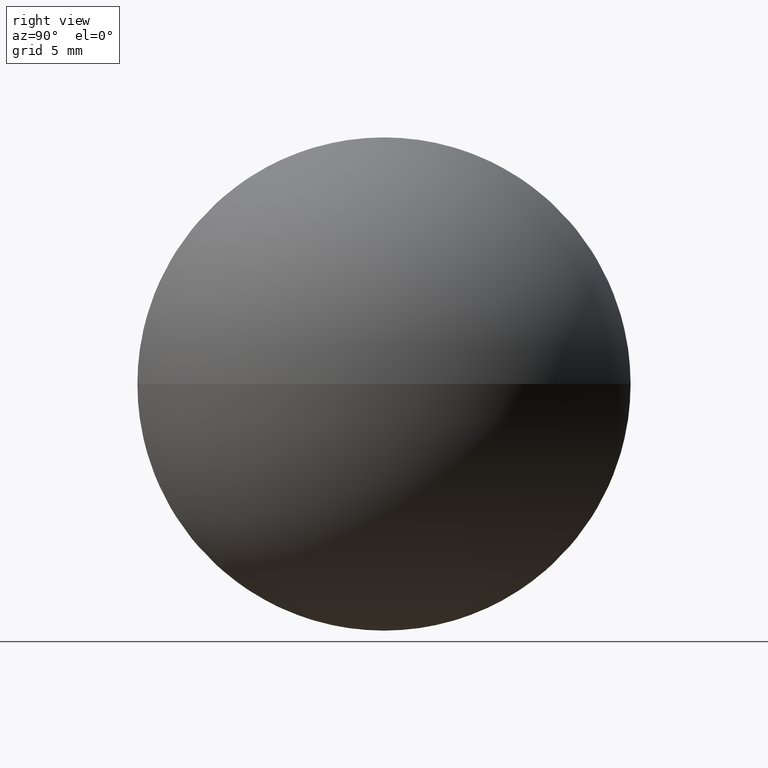
[diagram: clean part render]
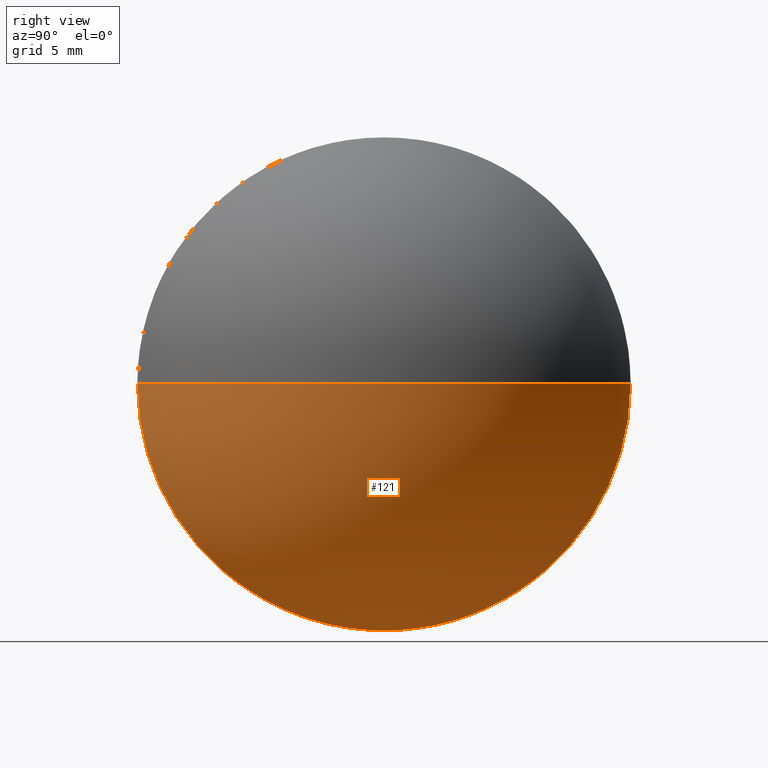
[diagram: same view with one face highlighted and labeled with its STEP entity id]
A machine part, right view. The second image highlights one B-rep face of the part: STEP entity #121.
In plain terms, the highlighted spherical surface has radius 13.1089 mm.
Its self-contained STEP definition (entity closure, byte-faithful):
#16 = SPHERICAL_SURFACE ( 'NONE', #117, 13.10893013100434100 ) ;
#17 = AXIS2_PLACEMENT_3D ( 'NONE', #145, #19, #160 ) ;
#19 = DIRECTION ( 'NONE',  ( -1.000000000000000000, -0.0000000000000000000, -0.0000000000000000000 ) ) ;
#25 = DIRECTION ( 'NONE',  ( 0.0000000000000000000, -1.000000000000000000, -1.224646799147353700E-016 ) ) ;
#27 = VERTEX_POINT ( 'NONE', #176 ) ;
#31 = ORIENTED_EDGE ( 'NONE', *, *, #87, .F. ) ;
#35 = DIRECTION ( 'NONE',  ( -1.000000000000000000, 0.0000000000000000000, 0.0000000000000000000 ) ) ;
#47 = CARTESIAN_POINT ( 'NONE',  ( 431.0878866193999700, 66.57798510397459800, 0.0000000000000000000 ) ) ;
#50 = DIRECTION ( 'NONE',  ( 0.0000000000000000000, 0.0000000000000000000, -1.000000000000000000 ) ) ;
#60 = CIRCLE ( 'NONE', #79, 13.10893013100433700 ) ;
#79 = AXIS2_PLACEMENT_3D ( 'NONE', #124, #50, #35 ) ;
#80 = DIRECTION ( 'NONE',  ( 0.0000000000000000000, -1.000000000000000000, 0.0000000000000000000 ) ) ;
#81 = CARTESIAN_POINT ( 'NONE',  ( 421.9278866193999400, 66.57798510397458400, -12.49999999999999600 ) ) ;
#84 = DIRECTION ( 'NONE',  ( 0.0000000000000000000, -1.224646799147353200E-016, 1.000000000000000000 ) ) ;
#85 = EDGE_LOOP ( 'NONE', ( #148, #110, #89, #31 ) ) ;
#86 = CARTESIAN_POINT ( 'NONE',  ( 417.9789564883956200, 66.57798510397459800, 0.0000000000000000000 ) ) ;
#87 = EDGE_CURVE ( 'NONE', #27, #125, #100, .T. ) ;
#89 = ORIENTED_EDGE ( 'NONE', *, *, #136, .F. ) ;
#100 = CIRCLE ( 'NONE', #17, 12.49999999999999600 ) ;
#109 = EDGE_CURVE ( 'NONE', #119, #137, #60, .T. ) ;
#110 = ORIENTED_EDGE ( 'NONE', *, *, #109, .T. ) ;
#114 = DIRECTION ( 'NONE',  ( 0.0000000000000000000, 0.0000000000000000000, 1.000000000000000000 ) ) ;
#117 = AXIS2_PLACEMENT_3D ( 'NONE', #135, #166, #80 ) ;
#119 = VERTEX_POINT ( 'NONE', #47 ) ;
#121 = ADVANCED_FACE ( 'NONE', ( #161 ), #16, .T. ) ;
#123 = AXIS2_PLACEMENT_3D ( 'NONE', #86, #84, #25 ) ;
#124 = CARTESIAN_POINT ( 'NONE',  ( 417.9789564883956200, 66.57798510397459800, 0.0000000000000000000 ) ) ;
#125 = VERTEX_POINT ( 'NONE', #81 ) ;
#135 = CARTESIAN_POINT ( 'NONE',  ( 417.9789564883956200, 66.57798510397459800, 0.0000000000000000000 ) ) ;
#136 = EDGE_CURVE ( 'NONE', #125, #137, #168, .T. ) ;
#137 = VERTEX_POINT ( 'NONE', #185 ) ;
#142 = AXIS2_PLACEMENT_3D ( 'NONE', #182, #183, #114 ) ;
#145 = CARTESIAN_POINT ( 'NONE',  ( 421.9278866193999400, 66.57798510397458400, 0.0000000000000000000 ) ) ;
#148 = ORIENTED_EDGE ( 'NONE', *, *, #154, .F. ) ;
#154 = EDGE_CURVE ( 'NONE', #119, #27, #175, .T. ) ;
#160 = DIRECTION ( 'NONE',  ( 0.0000000000000000000, 0.0000000000000000000, 1.000000000000000000 ) ) ;
#161 = FACE_OUTER_BOUND ( 'NONE', #85, .T. ) ;
#166 = DIRECTION ( 'NONE',  ( 0.0000000000000000000, 0.0000000000000000000, 1.000000000000000000 ) ) ;
#168 = CIRCLE ( 'NONE', #142, 12.49999999999999600 ) ;
#175 = CIRCLE ( 'NONE', #123, 13.10893013100433700 ) ;
#176 = CARTESIAN_POINT ( 'NONE',  ( 421.9278866193999400, 79.07798510397458400, 1.530808498934189500E-015 ) ) ;
#182 = CARTESIAN_POINT ( 'NONE',  ( 421.9278866193999400, 66.57798510397458400, 0.0000000000000000000 ) ) ;
#183 = DIRECTION ( 'NONE',  ( -1.000000000000000000, -0.0000000000000000000, -0.0000000000000000000 ) ) ;
#185 = CARTESIAN_POINT ( 'NONE',  ( 421.9278866193999400, 54.07798510397460500, 0.0000000000000000000 ) ) ;